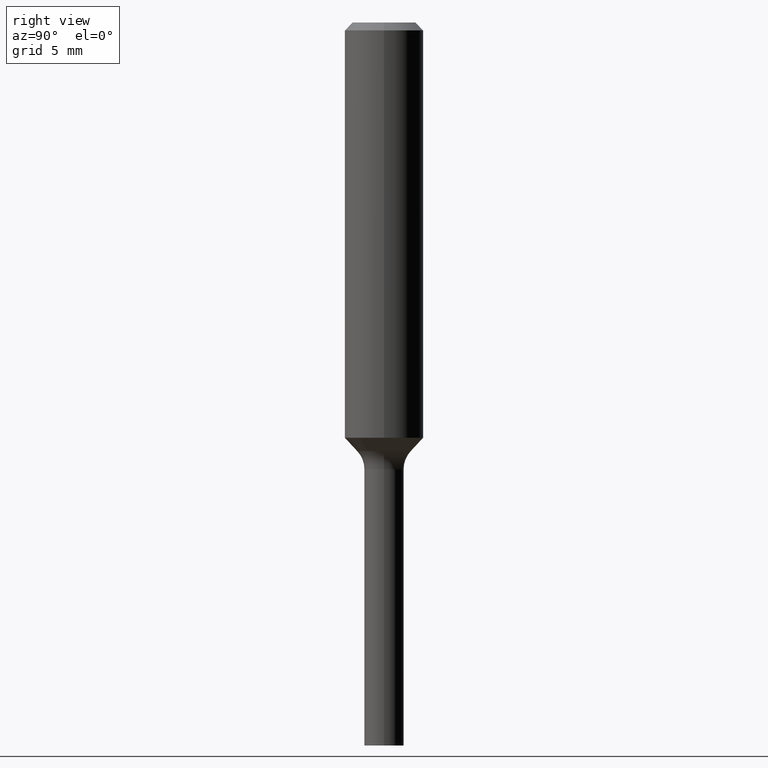
[diagram: clean part render]
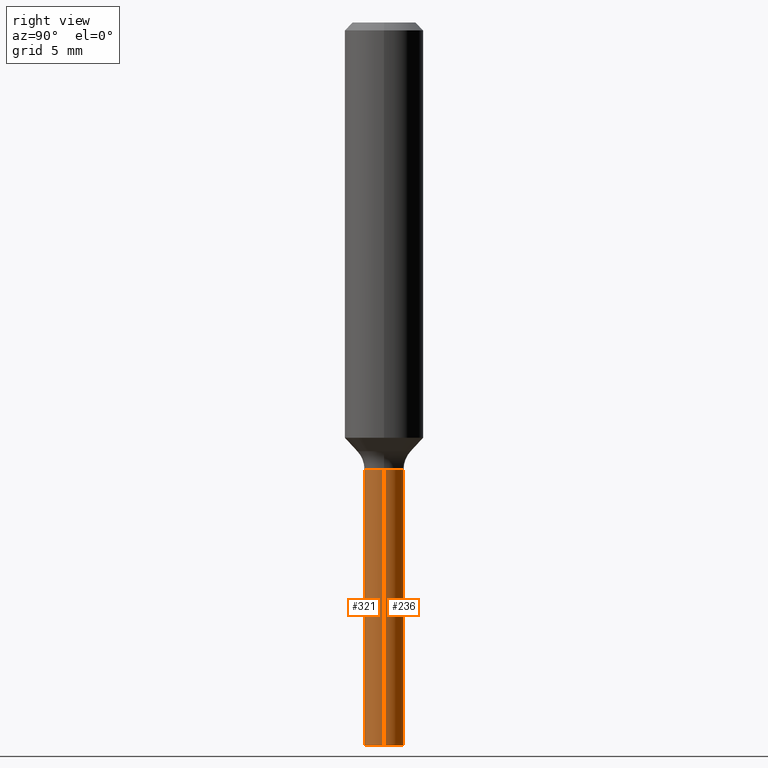
[diagram: same view with one multi-face feature highlighted, each face labeled with its STEP entity id]
A machine part, right view. The highlighted faces form ONE feature: a constant-radius fillet chain: 2 tangent blend faces with common blend radius 1.4999 mm. The faces share edges in the B-rep.
Their STEP definitions:
[1] entity #236 (Cylinder):
#22 = CYLINDRICAL_SURFACE ( 'NONE', #82, 0.05905000000000001914 ) ;
#37 = DIRECTION ( 'NONE',  ( -2.445468806185136597E-29, 3.491481338843145583E-15, 1.000000000000000000 ) ) ;
#51 = VECTOR ( 'NONE', #352, 39.37007874015748143 ) ;
#55 = FACE_OUTER_BOUND ( 'NONE', #309, .T. ) ;
#71 = CARTESIAN_POINT ( 'NONE',  ( -0.05905000000000001914, -4.253423138441326642E-15, -2.165399999999999991 ) ) ;
#79 = CARTESIAN_POINT ( 'NONE',  ( 1.250612747483078623E-29, -1.785543556684384453E-15, -0.5113999999999998547 ) ) ;
#82 = AXIS2_PLACEMENT_3D ( 'NONE', #274, #174, #432 ) ;
#83 = CIRCLE ( 'NONE', #386, 0.05905000000000001914 ) ;
#109 = LINE ( 'NONE', #212, #512 ) ;
#143 = CIRCLE ( 'NONE', #458, 0.05905000000000001914 ) ;
#151 = DIRECTION ( 'NONE',  ( 1.000000000000000000, -6.982962677686266711E-15, 0.000000000000000000 ) ) ;
#174 = DIRECTION ( 'NONE',  ( -2.445468806185136597E-29, 3.491481338843145583E-15, 1.000000000000000000 ) ) ;
#212 = CARTESIAN_POINT ( 'NONE',  ( 0.05905000000000001914, -2.197887502801758584E-15, -0.5113999999999998547 ) ) ;
#228 = CARTESIAN_POINT ( 'NONE',  ( 0.05905000000000001914, -2.197887502801758584E-15, -0.5113999999999998547 ) ) ;
#236 = ADVANCED_FACE ( 'NONE', ( #55 ), #22, .T. ) ;
#245 = DIRECTION ( 'NONE',  ( -2.445468806185136597E-29, 3.491481338843145583E-15, 1.000000000000000000 ) ) ;
#261 = ORIENTED_EDGE ( 'NONE', *, *, #513, .T. ) ;
#273 = ORIENTED_EDGE ( 'NONE', *, *, #280, .F. ) ;
#274 = CARTESIAN_POINT ( 'NONE',  ( 1.250612747483078623E-29, -1.785543556684384453E-15, -0.5113999999999998547 ) ) ;
#280 = EDGE_CURVE ( 'NONE', #402, #413, #143, .T. ) ;
#287 = ORIENTED_EDGE ( 'NONE', *, *, #291, .F. ) ;
#291 = EDGE_CURVE ( 'NONE', #356, #402, #109, .T. ) ;
#292 = CARTESIAN_POINT ( 'NONE',  ( 0.05905000000000001914, -7.972797637248321554E-15, -2.165399999999999991 ) ) ;
#296 = DIRECTION ( 'NONE',  ( -2.445468806185136877E-29, 3.491481338843145188E-15, 1.000000000000000000 ) ) ;
#309 = EDGE_LOOP ( 'NONE', ( #404, #261, #273, #287 ) ) ;
#310 = CARTESIAN_POINT ( 'NONE',  ( -0.05905000000000001914, -4.253423138441326642E-15, -0.5113999999999998547 ) ) ;
#313 = CARTESIAN_POINT ( 'NONE',  ( -0.05905000000000001914, -1.365968071218044960E-15, -0.5113999999999998547 ) ) ;
#314 = DIRECTION ( 'NONE',  ( 1.000000000000000000, -6.982962677686270655E-15, 0.000000000000000000 ) ) ;
#352 = DIRECTION ( 'NONE',  ( -2.445468806185136877E-29, 3.491481338843145188E-15, 1.000000000000000000 ) ) ;
#356 = VERTEX_POINT ( 'NONE', #292 ) ;
#386 = AXIS2_PLACEMENT_3D ( 'NONE', #403, #37, #314 ) ;
#402 = VERTEX_POINT ( 'NONE', #228 ) ;
#403 = CARTESIAN_POINT ( 'NONE',  ( 5.295418152913294345E-29, -7.560453691130947423E-15, -2.165399999999999991 ) ) ;
#404 = ORIENTED_EDGE ( 'NONE', *, *, #514, .T. ) ;
#413 = VERTEX_POINT ( 'NONE', #310 ) ;
#432 = DIRECTION ( 'NONE',  ( 1.000000000000000000, -6.982962677686266711E-15, 0.000000000000000000 ) ) ;
#458 = AXIS2_PLACEMENT_3D ( 'NONE', #79, #245, #151 ) ;
#486 = LINE ( 'NONE', #313, #51 ) ;
#491 = VERTEX_POINT ( 'NONE', #71 ) ;
#512 = VECTOR ( 'NONE', #296, 39.37007874015748143 ) ;
#513 = EDGE_CURVE ( 'NONE', #491, #413, #486, .T. ) ;
#514 = EDGE_CURVE ( 'NONE', #356, #491, #83, .T. ) ;
[2] entity #321 (Cylinder):
#20 = DIRECTION ( 'NONE',  ( -2.445468806185136597E-29, 3.491481338843145583E-15, 1.000000000000000000 ) ) ;
#24 = ORIENTED_EDGE ( 'NONE', *, *, #475, .T. ) ;
#32 = ORIENTED_EDGE ( 'NONE', *, *, #136, .F. ) ;
#51 = VECTOR ( 'NONE', #352, 39.37007874015748143 ) ;
#56 = ORIENTED_EDGE ( 'NONE', *, *, #513, .F. ) ;
#57 = CYLINDRICAL_SURFACE ( 'NONE', #91, 0.05905000000000001914 ) ;
#71 = CARTESIAN_POINT ( 'NONE',  ( -0.05905000000000001914, -4.253423138441326642E-15, -2.165399999999999991 ) ) ;
#78 = DIRECTION ( 'NONE',  ( 1.000000000000000000, -6.982962677686270655E-15, 0.000000000000000000 ) ) ;
#91 = AXIS2_PLACEMENT_3D ( 'NONE', #221, #20, #466 ) ;
#109 = LINE ( 'NONE', #212, #512 ) ;
#136 = EDGE_CURVE ( 'NONE', #413, #402, #308, .T. ) ;
#160 = DIRECTION ( 'NONE',  ( -2.445468806185136597E-29, 3.491481338843145583E-15, 1.000000000000000000 ) ) ;
#176 = FACE_OUTER_BOUND ( 'NONE', #346, .T. ) ;
#204 = AXIS2_PLACEMENT_3D ( 'NONE', #434, #160, #78 ) ;
#212 = CARTESIAN_POINT ( 'NONE',  ( 0.05905000000000001914, -2.197887502801758584E-15, -0.5113999999999998547 ) ) ;
#221 = CARTESIAN_POINT ( 'NONE',  ( 1.250612747483078623E-29, -1.785543556684384453E-15, -0.5113999999999998547 ) ) ;
#228 = CARTESIAN_POINT ( 'NONE',  ( 0.05905000000000001914, -2.197887502801758584E-15, -0.5113999999999998547 ) ) ;
#229 = DIRECTION ( 'NONE',  ( 1.000000000000000000, -6.982962677686266711E-15, 0.000000000000000000 ) ) ;
#258 = DIRECTION ( 'NONE',  ( -2.445468806185136597E-29, 3.491481338843145583E-15, 1.000000000000000000 ) ) ;
#278 = AXIS2_PLACEMENT_3D ( 'NONE', #425, #258, #229 ) ;
#291 = EDGE_CURVE ( 'NONE', #356, #402, #109, .T. ) ;
#292 = CARTESIAN_POINT ( 'NONE',  ( 0.05905000000000001914, -7.972797637248321554E-15, -2.165399999999999991 ) ) ;
#296 = DIRECTION ( 'NONE',  ( -2.445468806185136877E-29, 3.491481338843145188E-15, 1.000000000000000000 ) ) ;
#308 = CIRCLE ( 'NONE', #278, 0.05905000000000001914 ) ;
#310 = CARTESIAN_POINT ( 'NONE',  ( -0.05905000000000001914, -4.253423138441326642E-15, -0.5113999999999998547 ) ) ;
#313 = CARTESIAN_POINT ( 'NONE',  ( -0.05905000000000001914, -1.365968071218044960E-15, -0.5113999999999998547 ) ) ;
#321 = ADVANCED_FACE ( 'NONE', ( #176 ), #57, .T. ) ;
#346 = EDGE_LOOP ( 'NONE', ( #56, #24, #445, #32 ) ) ;
#352 = DIRECTION ( 'NONE',  ( -2.445468806185136877E-29, 3.491481338843145188E-15, 1.000000000000000000 ) ) ;
#356 = VERTEX_POINT ( 'NONE', #292 ) ;
#402 = VERTEX_POINT ( 'NONE', #228 ) ;
#408 = CIRCLE ( 'NONE', #204, 0.05905000000000001914 ) ;
#413 = VERTEX_POINT ( 'NONE', #310 ) ;
#425 = CARTESIAN_POINT ( 'NONE',  ( 1.250612747483078623E-29, -1.785543556684384453E-15, -0.5113999999999998547 ) ) ;
#434 = CARTESIAN_POINT ( 'NONE',  ( 5.295418152913294345E-29, -7.560453691130947423E-15, -2.165399999999999991 ) ) ;
#445 = ORIENTED_EDGE ( 'NONE', *, *, #291, .T. ) ;
#466 = DIRECTION ( 'NONE',  ( 1.000000000000000000, -6.982962677686266711E-15, 0.000000000000000000 ) ) ;
#475 = EDGE_CURVE ( 'NONE', #491, #356, #408, .T. ) ;
#486 = LINE ( 'NONE', #313, #51 ) ;
#491 = VERTEX_POINT ( 'NONE', #71 ) ;
#512 = VECTOR ( 'NONE', #296, 39.37007874015748143 ) ;
#513 = EDGE_CURVE ( 'NONE', #491, #413, #486, .T. ) ;